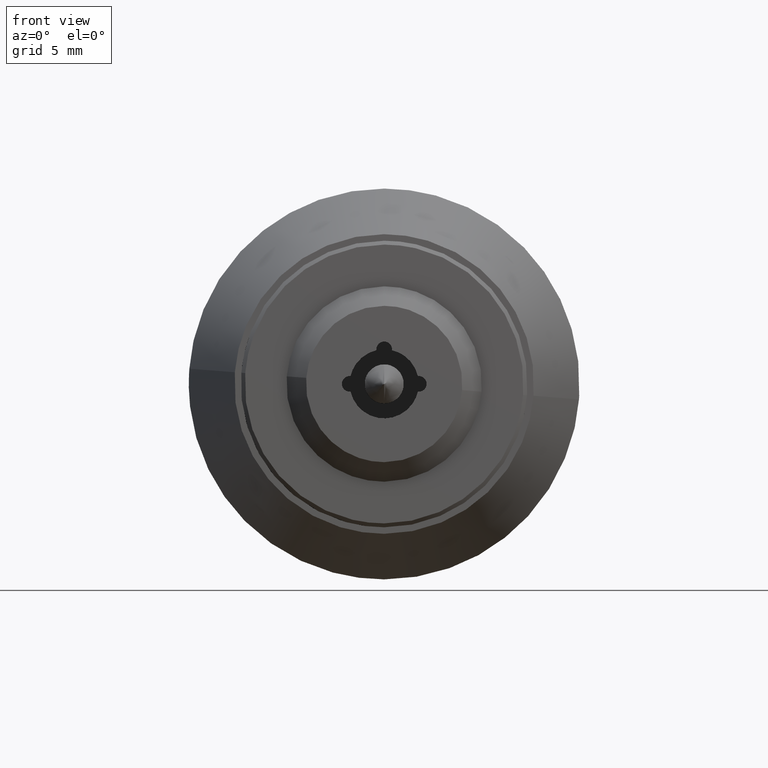
[diagram: clean part render]
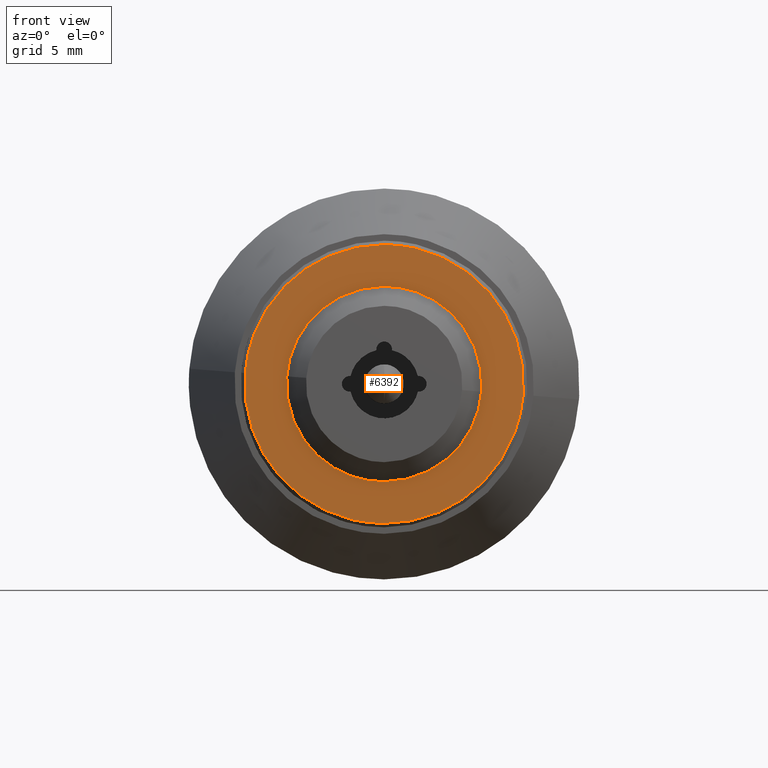
[diagram: same view with one face highlighted and labeled with its STEP entity id]
A machine part, front view. The second image highlights one B-rep face of the part: STEP entity #6392.
In plain terms, the highlighted face is a freeform B-spline surface patch.
Its self-contained STEP definition (entity closure, byte-faithful):
#4101=CARTESIAN_POINT('',(1.500000000003777,10.667015470946019,0.839512324317805));
#4102=VERTEX_POINT('',#4101);
#4108=CARTESIAN_POINT('',(1.499999999999886,0.0,10.699999999999999));
#4109=VERTEX_POINT('',#4108);
#4110=CARTESIAN_POINT('',(1.499999999999886,0.0,10.699999999999999));
#4111=CARTESIAN_POINT('',(1.499999999999886,9.890978260687831,10.699999999999999));
#4112=CARTESIAN_POINT('',(1.500000000003777,10.667015470946016,0.839512324317805));
#4120=(BOUNDED_CURVE()B_SPLINE_CURVE(2,(#4110,#4111,#4112),.UNSPECIFIED.,.F.,.U.)B_SPLINE_CURVE_WITH_KNOTS((3,3),(0.0,0.236331300631817),.UNSPECIFIED.)CURVE()GEOMETRIC_REPRESENTATION_ITEM()RATIONAL_B_SPLINE_CURVE((1.0,0.723120658606310,0.969723356169833))REPRESENTATION_ITEM(''));
#4121=EDGE_CURVE('',#4109,#4102,#4120,.T.);
#4123=CARTESIAN_POINT('',(1.500000000003777,-10.667015470946019,-0.839512324317805));
#4124=VERTEX_POINT('',#4123);
#4125=CARTESIAN_POINT('',(1.500000000003778,-10.667015470946025,-0.839512324317805));
#4126=CARTESIAN_POINT('',(1.499999999999886,-10.700000000000005,-0.420404145011758));
#4127=CARTESIAN_POINT('',(1.499999999999886,-10.699999999999999,0.0));
#4128=CARTESIAN_POINT('',(1.499999999999886,-10.699999999999999,10.699999999999999));
#4129=CARTESIAN_POINT('',(1.499999999999886,0.0,10.699999999999999));
#4137=(BOUNDED_CURVE()B_SPLINE_CURVE(2,(#4125,#4126,#4127,#4128,#4129),.UNSPECIFIED.,.F.,.U.)B_SPLINE_CURVE_WITH_KNOTS((3,2,3),(0.736331300631817,0.750000000000000,1.0),.UNSPECIFIED.)CURVE()GEOMETRIC_REPRESENTATION_ITEM()RATIONAL_B_SPLINE_CURVE((0.969723356169833,0.983986122580238,1.0,0.707106781186548,1.0))REPRESENTATION_ITEM(''));
#4138=EDGE_CURVE('',#4124,#4109,#4137,.T.);
#4172=CARTESIAN_POINT('',(1.499999999999886,0.0,-10.699999999999999));
#4173=VERTEX_POINT('',#4172);
#4174=CARTESIAN_POINT('',(1.499999999999886,0.0,-10.699999999999999));
#4175=CARTESIAN_POINT('',(1.499999999999885,-9.890978260687893,-10.699999999999999));
#4176=CARTESIAN_POINT('',(1.500000000003778,-10.667015470946023,-0.839512324317805));
#4184=(BOUNDED_CURVE()B_SPLINE_CURVE(2,(#4174,#4175,#4176),.UNSPECIFIED.,.F.,.U.)B_SPLINE_CURVE_WITH_KNOTS((3,3),(0.500000000000000,0.736331300631818),.UNSPECIFIED.)CURVE()GEOMETRIC_REPRESENTATION_ITEM()RATIONAL_B_SPLINE_CURVE((1.0,0.723120658606309,0.969723356169835))REPRESENTATION_ITEM(''));
#4185=EDGE_CURVE('',#4173,#4124,#4184,.T.);
#4187=CARTESIAN_POINT('',(1.500000000003778,10.667015470946025,0.839512324317805));
#4188=CARTESIAN_POINT('',(1.499999999999886,10.700000000000005,0.420404145011758));
#4189=CARTESIAN_POINT('',(1.499999999999886,10.699999999999999,0.0));
#4190=CARTESIAN_POINT('',(1.499999999999886,10.699999999999999,-10.699999999999999));
#4191=CARTESIAN_POINT('',(1.499999999999886,0.0,-10.699999999999999));
#4199=(BOUNDED_CURVE()B_SPLINE_CURVE(2,(#4187,#4188,#4189,#4190,#4191),.UNSPECIFIED.,.F.,.U.)B_SPLINE_CURVE_WITH_KNOTS((3,2,3),(0.236331300631817,0.250000000000000,0.500000000000000),.UNSPECIFIED.)CURVE()GEOMETRIC_REPRESENTATION_ITEM()RATIONAL_B_SPLINE_CURVE((0.969723356169833,0.983986122580238,1.0,0.707106781186548,1.0))REPRESENTATION_ITEM(''));
#4200=EDGE_CURVE('',#4102,#4173,#4199,.T.);
#4224=CARTESIAN_POINT('',(1.499999999999886,0.0,7.500000000000000));
#4225=VERTEX_POINT('',#4224);
#4226=CARTESIAN_POINT('',(1.500000000002678,7.476880002999566,0.588443217980188));
#4227=VERTEX_POINT('',#4226);
#4228=CARTESIAN_POINT('',(1.499999999999886,0.0,7.500000000000000));
#4229=CARTESIAN_POINT('',(1.499999999999887,6.932928687397243,7.499999999999999));
#4230=CARTESIAN_POINT('',(1.500000000002678,7.476880002999566,0.588443217980188));
#4238=(BOUNDED_CURVE()B_SPLINE_CURVE(2,(#4228,#4229,#4230),.UNSPECIFIED.,.F.,.U.)B_SPLINE_CURVE_WITH_KNOTS((3,3),(0.0,0.236331300631798),.UNSPECIFIED.)CURVE()GEOMETRIC_REPRESENTATION_ITEM()RATIONAL_B_SPLINE_CURVE((1.0,0.723120658606332,0.969723356169793))REPRESENTATION_ITEM(''));
#4239=EDGE_CURVE('',#4225,#4227,#4238,.T.);
#4280=CARTESIAN_POINT('',(1.500000000002678,-7.476880002999566,-0.588443217980188));
#4281=VERTEX_POINT('',#4280);
#4287=CARTESIAN_POINT('',(1.500000000002678,-7.476880002999566,-0.588443217980188));
#4288=CARTESIAN_POINT('',(1.499999999999886,-7.500000000000001,-0.294675802578751));
#4289=CARTESIAN_POINT('',(1.499999999999886,-7.500000000000000,0.0));
#4290=CARTESIAN_POINT('',(1.499999999999887,-7.500000000000000,7.500000000000000));
#4291=CARTESIAN_POINT('',(1.499999999999886,0.0,7.500000000000000));
#4299=(BOUNDED_CURVE()B_SPLINE_CURVE(2,(#4287,#4288,#4289,#4290,#4291),.UNSPECIFIED.,.F.,.U.)B_SPLINE_CURVE_WITH_KNOTS((3,2,3),(0.736331300631798,0.750000000000000,1.0),.UNSPECIFIED.)CURVE()GEOMETRIC_REPRESENTATION_ITEM()RATIONAL_B_SPLINE_CURVE((0.969723356169793,0.983986122580216,1.0,0.707106781186547,1.0))REPRESENTATION_ITEM(''));
#4300=EDGE_CURVE('',#4281,#4225,#4299,.T.);
#4323=CARTESIAN_POINT('',(1.499999999999886,0.0,-7.500000000000000));
#4324=VERTEX_POINT('',#4323);
#4325=CARTESIAN_POINT('',(1.500000000002678,7.476880002999566,0.588443217980188));
#4326=CARTESIAN_POINT('',(1.499999999999886,7.500000000000001,0.294675802578751));
#4327=CARTESIAN_POINT('',(1.499999999999886,7.500000000000000,0.0));
#4328=CARTESIAN_POINT('',(1.499999999999887,7.500000000000000,-7.500000000000000));
#4329=CARTESIAN_POINT('',(1.499999999999886,0.0,-7.500000000000000));
#4337=(BOUNDED_CURVE()B_SPLINE_CURVE(2,(#4325,#4326,#4327,#4328,#4329),.UNSPECIFIED.,.F.,.U.)B_SPLINE_CURVE_WITH_KNOTS((3,2,3),(0.236331300631798,0.250000000000000,0.500000000000000),.UNSPECIFIED.)CURVE()GEOMETRIC_REPRESENTATION_ITEM()RATIONAL_B_SPLINE_CURVE((0.969723356169793,0.983986122580216,1.0,0.707106781186547,1.0))REPRESENTATION_ITEM(''));
#4338=EDGE_CURVE('',#4227,#4324,#4337,.T.);
#4340=CARTESIAN_POINT('',(1.499999999999886,0.0,-7.500000000000000));
#4341=CARTESIAN_POINT('',(1.499999999999887,-6.932928687397243,-7.499999999999999));
#4342=CARTESIAN_POINT('',(1.500000000002678,-7.476880002999566,-0.588443217980188));
#4350=(BOUNDED_CURVE()B_SPLINE_CURVE(2,(#4340,#4341,#4342),.UNSPECIFIED.,.F.,.U.)B_SPLINE_CURVE_WITH_KNOTS((3,3),(0.500000000000000,0.736331300631798),.UNSPECIFIED.)CURVE()GEOMETRIC_REPRESENTATION_ITEM()RATIONAL_B_SPLINE_CURVE((1.0,0.723120658606332,0.969723356169793))REPRESENTATION_ITEM(''));
#4351=EDGE_CURVE('',#4324,#4281,#4350,.T.);
#6375=CARTESIAN_POINT('',(1.499999999999886,-11.765664456840980,-11.768929757634760));
#6376=CARTESIAN_POINT('',(1.499999999999886,-11.765664456840980,11.768930522958399));
#6377=CARTESIAN_POINT('',(1.499999999999886,11.765664456840980,-11.768929757634760));
#6378=CARTESIAN_POINT('',(1.499999999999886,11.765664456840980,11.768930522958399));
#6379=B_SPLINE_SURFACE_WITH_KNOTS('',1,1,((#6375,#6377),(#6376,#6378)),.UNSPECIFIED.,.F.,.F.,.U.,(2,2),(2,2),(0.0,23.537860280593151),(0.0,23.531328913681950),.UNSPECIFIED.);
#6380=ORIENTED_EDGE('',*,*,#4121,.T.);
#6381=ORIENTED_EDGE('',*,*,#4200,.T.);
#6382=ORIENTED_EDGE('',*,*,#4185,.T.);
#6383=ORIENTED_EDGE('',*,*,#4138,.T.);
#6384=EDGE_LOOP('',(#6380,#6381,#6382,#6383));
#6385=FACE_OUTER_BOUND('',#6384,.T.);
#6386=ORIENTED_EDGE('',*,*,#4351,.F.);
#6387=ORIENTED_EDGE('',*,*,#4338,.F.);
#6388=ORIENTED_EDGE('',*,*,#4239,.F.);
#6389=ORIENTED_EDGE('',*,*,#4300,.F.);
#6390=EDGE_LOOP('',(#6386,#6387,#6388,#6389));
#6391=FACE_BOUND('',#6390,.T.);
#6392=ADVANCED_FACE('',(#6385,#6391),#6379,.T.);